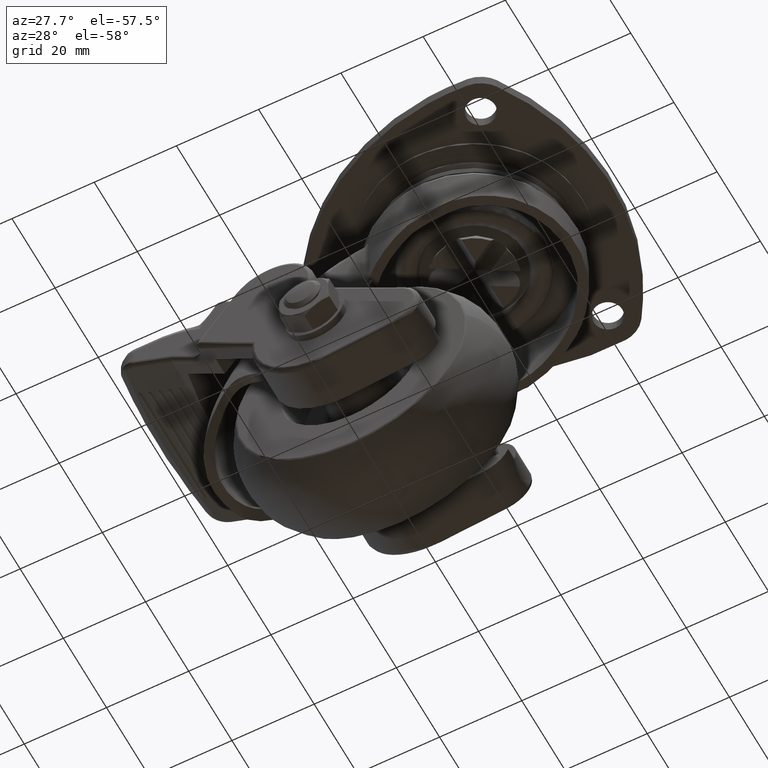
[diagram: clean part render]
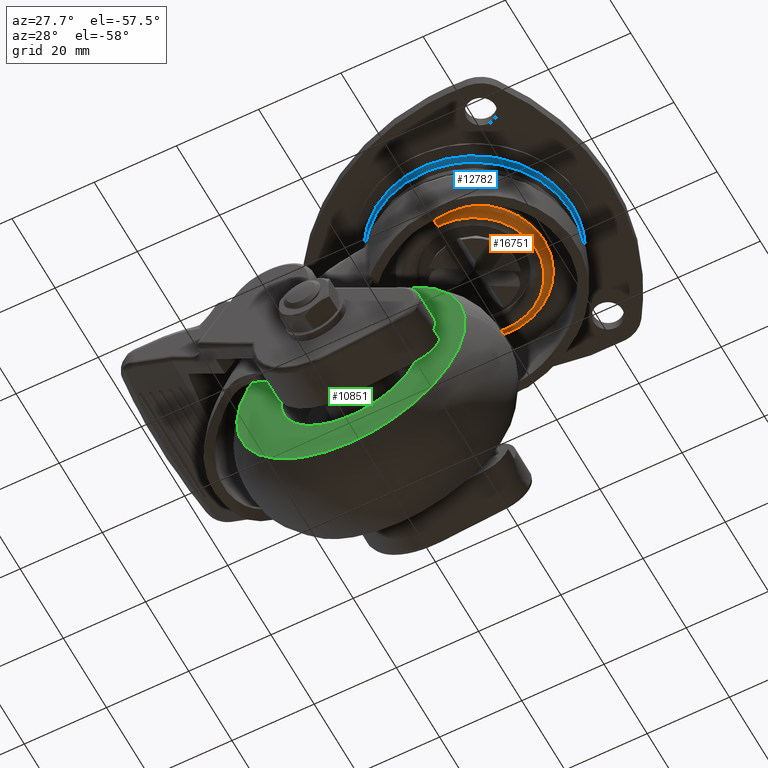
[diagram: same view with three faces highlighted in distinct colors, each labeled with its STEP entity id]
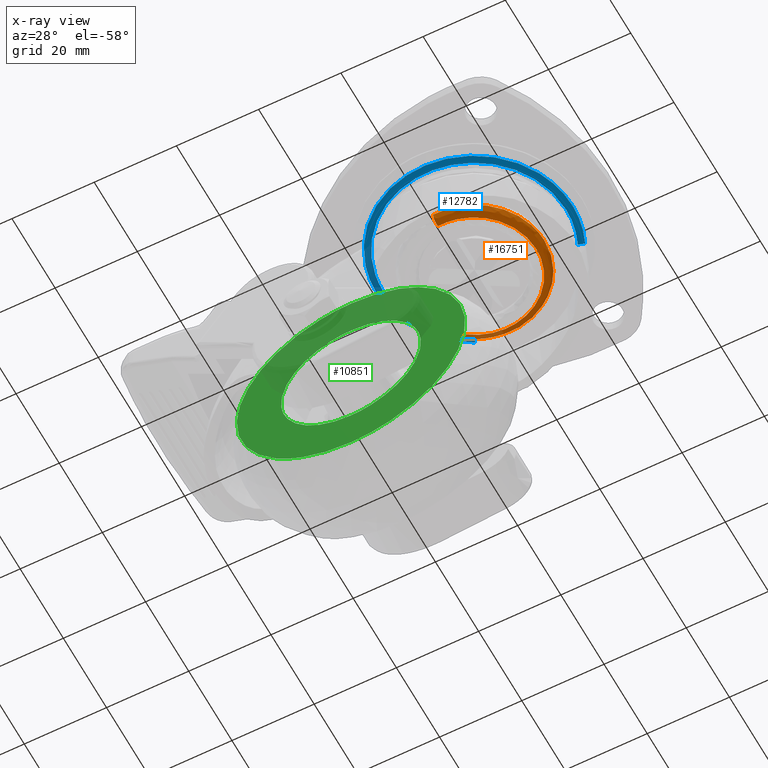
[diagram: x-ray of the same camera — body ghosted, the three highlighted faces saturated]
A machine part, auxiliary view with three faces highlighted in distinct colors.
The next image is the same camera in x-ray (body ghosted, the three faces saturated) — at least one of them is partly hidden behind the body in this view.
Their STEP definitions:

[orange] entity #16751 — the highlighted face is a freeform B-spline surface patch.
#14975=CARTESIAN_POINT('',(17.0,0.0,-13.260379159228281));
#14976=VERTEX_POINT('',#14975);
#14977=CARTESIAN_POINT('',(11.110132898970740,12.867204318234700,-13.260379159227741));
#14978=VERTEX_POINT('',#14977);
#14979=CARTESIAN_POINT('',(17.0,0.0,-13.260379159228281));
#14980=CARTESIAN_POINT('',(17.000000000000007,7.781623594458412,-13.260379159228275));
#14981=CARTESIAN_POINT('',(11.110132898970740,12.867204318234702,-13.260379159227744));
#14989=(BOUNDED_CURVE()B_SPLINE_CURVE(2,(#14979,#14980,#14981),.UNSPECIFIED.,.F.,.U.)B_SPLINE_CURVE_WITH_KNOTS((3,3),(0.0,0.136042369939355),.UNSPECIFIED.)CURVE()GEOMETRIC_REPRESENTATION_ITEM()RATIONAL_B_SPLINE_CURVE((1.0,0.840616449493807,0.854696226509305))REPRESENTATION_ITEM(''));
#14990=EDGE_CURVE('',#14976,#14978,#14989,.T.);
#15048=CARTESIAN_POINT('',(0.445008121306036,16.994174524582579,-13.260379159228281));
#15049=VERTEX_POINT('',#15048);
#15055=CARTESIAN_POINT('',(-16.998657751463799,0.213622678099486,-13.260379409527360));
#15056=VERTEX_POINT('',#15055);
#15057=CARTESIAN_POINT('',(0.445008121306036,16.994174524582579,-13.260379159228279));
#15058=CARTESIAN_POINT('',(0.222542190514422,17.000000000000004,-13.260379159228277));
#15059=CARTESIAN_POINT('',(0.0,17.0,-13.260379159228281));
#15060=CARTESIAN_POINT('',(-16.787702808261368,16.999999999999996,-13.260379159228281));
#15061=CARTESIAN_POINT('',(-16.998657751463803,0.213622678099486,-13.260379409527358));
#15069=(BOUNDED_CURVE()B_SPLINE_CURVE(2,(#15057,#15058,#15059,#15060,#15061),.UNSPECIFIED.,.F.,.U.)B_SPLINE_CURVE_WITH_KNOTS((3,2,3),(0.245396693339510,0.250000000000000,0.497784295920021),.UNSPECIFIED.)CURVE()GEOMETRIC_REPRESENTATION_ITEM()RATIONAL_B_SPLINE_CURVE((0.989412390644931,0.994606890780094,1.0,0.709702639986240,0.994854295640083))REPRESENTATION_ITEM(''));
#15070=EDGE_CURVE('',#15049,#15056,#15069,.T.);
#15087=CARTESIAN_POINT('',(-1.185465276783836,-16.958616455287231,-13.260379409527440));
#15088=VERTEX_POINT('',#15087);
#15102=CARTESIAN_POINT('',(-1.185465276783835,-16.958616455287231,-13.260379409527445));
#15103=CARTESIAN_POINT('',(-0.593454969871431,-17.0,-13.260379159228284));
#15104=CARTESIAN_POINT('',(0.0,-17.0,-13.260379159228281));
#15105=CARTESIAN_POINT('',(17.000000000000004,-17.000000000000004,-13.260379159228281));
#15106=CARTESIAN_POINT('',(17.0,0.0,-13.260379159228281));
#15114=(BOUNDED_CURVE()B_SPLINE_CURVE(2,(#15102,#15103,#15104,#15105,#15106),.UNSPECIFIED.,.F.,.U.)B_SPLINE_CURVE_WITH_KNOTS((3,2,3),(0.737833686535108,0.750000000000000,1.0),.UNSPECIFIED.)CURVE()GEOMETRIC_REPRESENTATION_ITEM()RATIONAL_B_SPLINE_CURVE((0.972879876387010,0.985746277152697,1.0,0.707106781186548,1.0))REPRESENTATION_ITEM(''));
#15115=EDGE_CURVE('',#15088,#14976,#15114,.T.);
#15134=CARTESIAN_POINT('',(11.110132898970740,12.867204318234702,-13.260379159227744));
#15135=CARTESIAN_POINT('',(6.514553427737923,16.835237887176142,-13.260379159228279));
#15136=CARTESIAN_POINT('',(0.445008121306036,16.994174524582579,-13.260379159228279));
#15144=(BOUNDED_CURVE()B_SPLINE_CURVE(2,(#15134,#15135,#15136),.UNSPECIFIED.,.F.,.U.)B_SPLINE_CURVE_WITH_KNOTS((3,3),(0.136042369939355,0.245396693339510),.UNSPECIFIED.)CURVE()GEOMETRIC_REPRESENTATION_ITEM()RATIONAL_B_SPLINE_CURVE((0.854696226509305,0.866013910035704,0.989412390644931))REPRESENTATION_ITEM(''));
#15145=EDGE_CURVE('',#14978,#15049,#15144,.T.);
#16648=CARTESIAN_POINT('',(-1.036299825967873,-14.824749040127887,-15.255537858178188));
#16649=CARTESIAN_POINT('',(-0.612022287002005,-14.854407467302764,-15.255537858178188));
#16650=CARTESIAN_POINT('',(-0.186742980302309,-14.859751966011462,-15.255537858178188));
#16651=CARTESIAN_POINT('',(14.673008985709153,-15.046494946313771,-15.255537858178181));
#16652=CARTESIAN_POINT('',(14.859751966011462,-0.186742980302310,-15.255537858178188));
#16653=CARTESIAN_POINT('',(15.046494946313771,14.673008985709153,-15.255537858178181));
#16654=CARTESIAN_POINT('',(0.186742980302311,14.859751966011462,-15.255537858178188));
#16655=CARTESIAN_POINT('',(-14.673008985709147,15.046494946313771,-15.255537858178181));
#16656=CARTESIAN_POINT('',(-14.859751966011462,0.186742980302312,-15.255537858178188));
#16657=CARTESIAN_POINT('',(-1.196278201587132,-17.113313807749829,-15.415454008252050));
#16658=CARTESIAN_POINT('',(-0.706502985409842,-17.147550742885389,-15.415454008252050));
#16659=CARTESIAN_POINT('',(-0.215571354001166,-17.153720296467686,-15.415454008252048));
#16660=CARTESIAN_POINT('',(16.938148942466523,-17.369291650468860,-15.415454008252050));
#16661=CARTESIAN_POINT('',(17.153720296467686,-0.215571354001167,-15.415454008252048));
#16662=CARTESIAN_POINT('',(17.369291650468860,16.938148942466523,-15.415454008252050));
#16663=CARTESIAN_POINT('',(0.215571354001169,17.153720296467686,-15.415454008252048));
#16664=CARTESIAN_POINT('',(-16.938148942466519,17.369291650468860,-15.415454008252050));
#16665=CARTESIAN_POINT('',(-17.153720296467686,0.215571354001170,-15.415454008252048));
#16666=CARTESIAN_POINT('',(-1.185126741718835,-16.953787008810004,-13.121304536948243));
#16667=CARTESIAN_POINT('',(-0.699917109584154,-16.987704794263106,-13.121304536948244));
#16668=CARTESIAN_POINT('',(-0.213561842083530,-16.993816836533160,-13.121304536948244));
#16669=CARTESIAN_POINT('',(16.780254994449628,-17.207378678616688,-13.121304536948244));
#16670=CARTESIAN_POINT('',(16.993816836533160,-0.213561842083531,-13.121304536948244));
#16671=CARTESIAN_POINT('',(17.207378678616688,16.780254994449628,-13.121304536948244));
#16672=CARTESIAN_POINT('',(0.213561842083532,16.993816836533160,-13.121304536948244));
#16673=CARTESIAN_POINT('',(-16.780254994449628,17.207378678616688,-13.121304536948244));
#16674=CARTESIAN_POINT('',(-16.993816836533160,0.213561842083533,-13.121304536948244));
#16682=(BOUNDED_SURFACE()B_SPLINE_SURFACE(2,2,((#16648,#16657,#16666),(#16649,#16658,#16667),(#16650,#16659,#16668),(#16651,#16660,#16669),(#16652,#16661,#16670),(#16653,#16662,#16671),(#16654,#16663,#16672),(#16655,#16664,#16673),(#16656,#16665,#16674)),.UNSPECIFIED.,.F.,.F.,.U.)B_SPLINE_SURFACE_WITH_KNOTS((3,2,2,2,3),(3,3),(0.0,1.126338962541012,29.284839880105430,57.443340797669848,85.601841715234258),(0.0,3.644748868643993),.UNSPECIFIED.)GEOMETRIC_REPRESENTATION_ITEM()RATIONAL_B_SPLINE_SURFACE(((0.895729831234561,0.587800134052316,0.895729819879008),(0.905606589921446,0.594281508098050,0.905606578440681),(0.916342196299514,0.601326479302664,0.916342184682649),(0.647951780890761,0.425202031221946,0.647951772676397),(0.916342196299514,0.601326479302664,0.916342184682649),(0.647951780890761,0.425202031221946,0.647951772676397),(0.916342196299514,0.601326479302664,0.916342184682649),(0.647951780890761,0.425202031221946,0.647951772676397),(0.916342196299514,0.601326479302664,0.916342184682649)))REPRESENTATION_ITEM('')SURFACE());
#16683=CARTESIAN_POINT('',(15.0,0.0,-15.260379159228300));
#16684=VERTEX_POINT('',#16683);
#16685=CARTESIAN_POINT('',(-1.045998775780731,-14.963485124061799,-15.260379159228290));
#16686=VERTEX_POINT('',#16685);
#16687=CARTESIAN_POINT('',(15.0,0.0,-15.260379159228300));
#16688=CARTESIAN_POINT('',(14.999999999999996,-14.999999999999996,-15.260379159228293));
#16689=CARTESIAN_POINT('',(0.0,-15.0,-15.260379159228300));
#16690=CARTESIAN_POINT('',(-0.523636739118285,-15.0,-15.260379159228306));
#16691=CARTESIAN_POINT('',(-1.045998775780731,-14.963485124061803,-15.260379159228288));
#16699=(BOUNDED_CURVE()B_SPLINE_CURVE(2,(#16687,#16688,#16689,#16690,#16691),.UNSPECIFIED.,.F.,.U.)B_SPLINE_CURVE_WITH_KNOTS((3,2,3),(0.0,0.250000000000000,0.262166313487714),.UNSPECIFIED.)CURVE()GEOMETRIC_REPRESENTATION_ITEM()RATIONAL_B_SPLINE_CURVE((1.0,0.707106781186547,1.0,0.985746277125960,0.972879876338741))REPRESENTATION_ITEM(''));
#16700=EDGE_CURVE('',#16684,#16686,#16699,.T.);
#16701=ORIENTED_EDGE('',*,*,#16700,.F.);
#16702=CARTESIAN_POINT('',(-14.998815667251019,0.188490598434599,-15.260379159228290));
#16703=VERTEX_POINT('',#16702);
#16704=CARTESIAN_POINT('',(-14.998815667251021,0.188490598434599,-15.260379159228291));
#16705=CARTESIAN_POINT('',(-14.812678948349783,15.0,-15.260379159228297));
#16706=CARTESIAN_POINT('',(0.0,15.0,-15.260379159228300));
#16707=CARTESIAN_POINT('',(14.999999999999996,14.999999999999996,-15.260379159228293));
#16708=CARTESIAN_POINT('',(15.0,0.0,-15.260379159228300));
#16716=(BOUNDED_CURVE()B_SPLINE_CURVE(2,(#16704,#16705,#16706,#16707,#16708),.UNSPECIFIED.,.F.,.U.)B_SPLINE_CURVE_WITH_KNOTS((3,2,3),(0.502215704081358,0.750000000000000,1.0),.UNSPECIFIED.)CURVE()GEOMETRIC_REPRESENTATION_ITEM()RATIONAL_B_SPLINE_CURVE((0.994854295636910,0.709702639987855,1.0,0.707106781186547,1.0))REPRESENTATION_ITEM(''));
#16717=EDGE_CURVE('',#16703,#16684,#16716,.T.);
#16718=ORIENTED_EDGE('',*,*,#16717,.F.);
#16719=CARTESIAN_POINT('',(-14.998815667251012,0.188490598434599,-15.260379159228286));
#16720=CARTESIAN_POINT('',(-16.998657250906295,0.213622671726446,-15.260379150836759));
#16721=CARTESIAN_POINT('',(-16.998657751463803,0.213622678099486,-13.260379409527360));
#16729=(BOUNDED_CURVE()B_SPLINE_CURVE(2,(#16719,#16720,#16721),.UNSPECIFIED.,.F.,.U.)B_SPLINE_CURVE_WITH_KNOTS((3,3),(-1.734750787298609,-0.265249468425991),.UNSPECIFIED.)CURVE()GEOMETRIC_REPRESENTATION_ITEM()RATIONAL_B_SPLINE_CURVE((0.889029722031360,0.628638993075931,0.889029631404285))REPRESENTATION_ITEM(''));
#16730=EDGE_CURVE('',#16703,#15056,#16729,.T.);
#16731=ORIENTED_EDGE('',*,*,#16730,.T.);
#16732=ORIENTED_EDGE('',*,*,#15070,.F.);
#16733=ORIENTED_EDGE('',*,*,#15145,.F.);
#16734=ORIENTED_EDGE('',*,*,#14990,.F.);
#16735=ORIENTED_EDGE('',*,*,#15115,.F.);
#16736=CARTESIAN_POINT('',(-1.045998775780731,-14.963485124061798,-15.260379159228284));
#16737=CARTESIAN_POINT('',(-1.185465241874159,-16.958615955907717,-15.260379126098041));
#16738=CARTESIAN_POINT('',(-1.185465276783836,-16.958616455287228,-13.260379409527447));
#16746=(BOUNDED_CURVE()B_SPLINE_CURVE(2,(#16736,#16737,#16738),.UNSPECIFIED.,.F.,.U.)B_SPLINE_CURVE_WITH_KNOTS((3,3),(-1.734750774445672,-0.265249468426077),.UNSPECIFIED.)CURVE()GEOMETRIC_REPRESENTATION_ITEM()RATIONAL_B_SPLINE_CURVE((0.869031705912400,0.614498264564011,0.869031621776412))REPRESENTATION_ITEM(''));
#16747=EDGE_CURVE('',#16686,#15088,#16746,.T.);
#16748=ORIENTED_EDGE('',*,*,#16747,.F.);
#16749=EDGE_LOOP('',(#16701,#16718,#16731,#16732,#16733,#16734,#16735,#16748));
#16750=FACE_OUTER_BOUND('',#16749,.T.);
#16751=ADVANCED_FACE('',(#16750),#16682,.T.);

[blue] entity #12782 — the highlighted face is a freeform B-spline surface patch.
#12508=CARTESIAN_POINT('',(21.397010466824788,-10.583736243661930,-4.424549421080224));
#12509=VERTEX_POINT('',#12508);
#12510=CARTESIAN_POINT('',(-23.871479410152251,0.0,-4.424549397748230));
#12511=VERTEX_POINT('',#12510);
#12512=CARTESIAN_POINT('',(21.397010466824788,-10.583736243661932,-4.424549421080224));
#12513=CARTESIAN_POINT('',(14.824411483884822,-23.871479410152247,-4.424549397748231));
#12514=CARTESIAN_POINT('',(0.0,-23.871479410152251,-4.424549397748230));
#12515=CARTESIAN_POINT('',(-23.871479410152251,-23.871479410152251,-4.424549397748230));
#12516=CARTESIAN_POINT('',(-23.871479410152251,0.0,-4.424549397748230));
#12524=(BOUNDED_CURVE()B_SPLINE_CURVE(2,(#12512,#12513,#12514,#12515,#12516),.UNSPECIFIED.,.F.,.U.)B_SPLINE_CURVE_WITH_KNOTS((3,2,3),(0.575362209165932,0.750000000000000,1.0),.UNSPECIFIED.)CURVE()GEOMETRIC_REPRESENTATION_ITEM()RATIONAL_B_SPLINE_CURVE((0.876646594191695,0.795399101264557,1.0,0.707106781186547,1.0))REPRESENTATION_ITEM(''));
#12525=EDGE_CURVE('',#12509,#12511,#12524,.T.);
#12543=CARTESIAN_POINT('',(-21.967295607639759,9.342668434163876,-4.424549421169845));
#12544=VERTEX_POINT('',#12543);
#12558=CARTESIAN_POINT('',(-23.871479410152251,0.0,-4.424549397748230));
#12559=CARTESIAN_POINT('',(-23.871479410152247,4.865385626466663,-4.424549397748229));
#12560=CARTESIAN_POINT('',(-21.967295607639755,9.342668434163876,-4.424549421169845));
#12568=(BOUNDED_CURVE()B_SPLINE_CURVE(2,(#12558,#12559,#12560),.UNSPECIFIED.,.F.,.U.)B_SPLINE_CURVE_WITH_KNOTS((3,3),(0.0,0.066449865337498),.UNSPECIFIED.)CURVE()GEOMETRIC_REPRESENTATION_ITEM()RATIONAL_B_SPLINE_CURVE((1.0,0.922149140206318,0.885683713610226))REPRESENTATION_ITEM(''));
#12569=EDGE_CURVE('',#12511,#12544,#12568,.T.);
#12603=CARTESIAN_POINT('',(23.871479410152251,0.0,-4.424549397748230));
#12604=VERTEX_POINT('',#12603);
#12605=CARTESIAN_POINT('',(23.871479410152251,0.0,-4.424549397748230));
#12606=CARTESIAN_POINT('',(23.871479410152258,-5.581132537186864,-4.424549397748230));
#12607=CARTESIAN_POINT('',(21.397010466824799,-10.583736243661932,-4.424549421080224));
#12615=(BOUNDED_CURVE()B_SPLINE_CURVE(2,(#12605,#12606,#12607),.UNSPECIFIED.,.F.,.U.)B_SPLINE_CURVE_WITH_KNOTS((3,3),(0.500000000000000,0.575362209165932),.UNSPECIFIED.)CURVE()GEOMETRIC_REPRESENTATION_ITEM()RATIONAL_B_SPLINE_CURVE((1.0,0.911707679921990,0.876646594191695))REPRESENTATION_ITEM(''));
#12616=EDGE_CURVE('',#12604,#12509,#12615,.T.);
#12618=CARTESIAN_POINT('',(21.793876702516609,9.740352532800246,-4.424549398178639));
#12619=VERTEX_POINT('',#12618);
#12620=CARTESIAN_POINT('',(21.793876702516609,9.740352532800246,-4.424549398178639));
#12621=CARTESIAN_POINT('',(23.871479410152247,5.091751050180061,-4.424549397748230));
#12622=CARTESIAN_POINT('',(23.871479410152251,0.0,-4.424549397748230));
#12630=(BOUNDED_CURVE()B_SPLINE_CURVE(2,(#12620,#12621,#12622),.UNSPECIFIED.,.F.,.U.)B_SPLINE_CURVE_WITH_KNOTS((3,3),(0.430709483575402,0.500000000000000),.UNSPECIFIED.)CURVE()GEOMETRIC_REPRESENTATION_ITEM()RATIONAL_B_SPLINE_CURVE((0.882641638329771,0.918821110444612,1.0))REPRESENTATION_ITEM(''));
#12631=EDGE_CURVE('',#12619,#12604,#12630,.T.);
#12633=CARTESIAN_POINT('',(-10.970851179863701,21.201130950326512,-4.424549398221217));
#12634=VERTEX_POINT('',#12633);
#12650=CARTESIAN_POINT('',(-21.967295607639766,9.342668434163876,-4.424549421169844));
#12651=CARTESIAN_POINT('',(-18.603727993323044,17.251381487924828,-4.424549397748230));
#12652=CARTESIAN_POINT('',(-10.970851179863706,21.201130950326512,-4.424549398221217));
#12660=(BOUNDED_CURVE()B_SPLINE_CURVE(2,(#12650,#12651,#12652),.UNSPECIFIED.,.F.,.U.)B_SPLINE_CURVE_WITH_KNOTS((3,3),(0.066449865337498,0.171825371000895),.UNSPECIFIED.)CURVE()GEOMETRIC_REPRESENTATION_ITEM()RATIONAL_B_SPLINE_CURVE((0.885683713610226,0.827857219195551,0.874103860134235))REPRESENTATION_ITEM(''));
#12661=EDGE_CURVE('',#12544,#12634,#12660,.T.);
#12671=CARTESIAN_POINT('',(21.860577896096252,9.770163343605127,-4.387421882799212));
#12672=CARTESIAN_POINT('',(31.087065258022214,-10.873948590792248,-4.387421882799211));
#12673=CARTESIAN_POINT('',(11.004427990213200,-21.266018017490474,-4.387421882799211));
#12674=CARTESIAN_POINT('',(-10.261590027277270,-32.270446007703683,-4.387421882799211));
#12675=CARTESIAN_POINT('',(-21.266018017490474,-11.004427990213211,-4.387421882799211));
#12676=CARTESIAN_POINT('',(-32.270446007703683,10.261590027277284,-4.387421882799211));
#12677=CARTESIAN_POINT('',(-11.004427990213211,21.266018017490474,-4.387421882799211));
#12678=CARTESIAN_POINT('',(21.107968519766224,9.433799109520249,-4.818181895831016));
#12679=CARTESIAN_POINT('',(30.016809160174535,-10.499583571438281,-4.818181895831016));
#12680=CARTESIAN_POINT('',(10.625570865486319,-20.533877969169751,-4.818181895831015));
#12681=CARTESIAN_POINT('',(-9.908307103683438,-31.159448834656075,-4.818181895831016));
#12682=CARTESIAN_POINT('',(-20.533877969169751,-10.625570865486329,-4.818181895831015));
#12683=CARTESIAN_POINT('',(-31.159448834656075,9.908307103683448,-4.818181895831016));
#12684=CARTESIAN_POINT('',(-10.625570865486331,20.533877969169751,-4.818181895831015));
#12685=CARTESIAN_POINT('',(20.259021432128900,9.054378594851439,-4.797089821985121));
#12686=CARTESIAN_POINT('',(28.809555004340812,-10.077297983603044,-4.797089821985121));
#12687=CARTESIAN_POINT('',(10.198218160639740,-19.708020384461754,-4.797089821985122));
#12688=CARTESIAN_POINT('',(-9.509802223822009,-29.906238545101480,-4.797089821985122));
#12689=CARTESIAN_POINT('',(-19.708020384461744,-10.198218160639751,-4.797089821985122));
#12690=CARTESIAN_POINT('',(-29.906238545101480,9.509802223822019,-4.797089821985122));
#12691=CARTESIAN_POINT('',(-10.198218160639753,19.708020384461744,-4.797089821985122));
#12699=(BOUNDED_SURFACE()B_SPLINE_SURFACE(2,2,((#12671,#12678,#12685),(#12672,#12679,#12686),(#12673,#12680,#12687),(#12674,#12681,#12688),(#12675,#12682,#12689),(#12676,#12683,#12690),(#12677,#12684,#12691)),.UNSPECIFIED.,.F.,.F.,.U.)B_SPLINE_SURFACE_WITH_KNOTS((3,2,2,3),(3,3),(0.0,38.085707071661332,77.758318604641886,117.430930137622400),(0.0,1.830360126657434),.UNSPECIFIED.)GEOMETRIC_REPRESENTATION_ITEM()RATIONAL_B_SPLINE_SURFACE(((0.924956013273077,0.896066427291214,0.925673226323901),(0.680179291522746,0.658934931960182,0.680706704132405),(0.946240945599193,0.916686557320000,0.946974663036205),(0.669093389269561,0.648195280903523,0.669612205844747),(0.946240945599193,0.916686557320000,0.946974663036205),(0.669093389269561,0.648195280903523,0.669612205844747),(0.946240945599193,0.916686557320000,0.946974663036205)))REPRESENTATION_ITEM('')SURFACE());
#12700=ORIENTED_EDGE('',*,*,#12631,.T.);
#12701=ORIENTED_EDGE('',*,*,#12616,.T.);
#12702=ORIENTED_EDGE('',*,*,#12525,.T.);
#12703=ORIENTED_EDGE('',*,*,#12569,.T.);
#12704=ORIENTED_EDGE('',*,*,#12661,.T.);
#12705=CARTESIAN_POINT('',(-10.235851355055679,19.780746398871980,-4.798018899278171));
#12706=VERTEX_POINT('',#12705);
#12707=CARTESIAN_POINT('',(-10.970851179863708,21.201130950326512,-4.424549398221217));
#12708=CARTESIAN_POINT('',(-10.623392012446118,20.529667343406061,-4.798018398963315));
#12709=CARTESIAN_POINT('',(-10.235851355055676,19.780746398871980,-4.798018899278171));
#12717=(BOUNDED_CURVE()B_SPLINE_CURVE(2,(#12707,#12708,#12709),.UNSPECIFIED.,.F.,.U.)B_SPLINE_CURVE_WITH_KNOTS((3,3),(-1.419603642035961,-0.568924215773596),.UNSPECIFIED.)CURVE()GEOMETRIC_REPRESENTATION_ITEM()RATIONAL_B_SPLINE_CURVE((0.943680018407201,0.919280800855302,0.944347103401346))REPRESENTATION_ITEM(''));
#12718=EDGE_CURVE('',#12634,#12706,#12717,.T.);
#12719=ORIENTED_EDGE('',*,*,#12718,.T.);
#12720=CARTESIAN_POINT('',(-22.272193000000001,0.0,-4.798019399278131));
#12721=VERTEX_POINT('',#12720);
#12722=CARTESIAN_POINT('',(-22.272193000000001,0.0,-4.798019399278131));
#12723=CARTESIAN_POINT('',(-22.272192999999998,13.552356353921962,-4.798019399278131));
#12724=CARTESIAN_POINT('',(-10.235851355055676,19.780746398871980,-4.798018899278171));
#12732=(BOUNDED_CURVE()B_SPLINE_CURVE(2,(#12722,#12723,#12724),.UNSPECIFIED.,.F.,.U.)B_SPLINE_CURVE_WITH_KNOTS((3,3),(0.0,0.171825371002079),.UNSPECIFIED.)CURVE()GEOMETRIC_REPRESENTATION_ITEM()RATIONAL_B_SPLINE_CURVE((1.0,0.798694056053542,0.874103860135275))REPRESENTATION_ITEM(''));
#12733=EDGE_CURVE('',#12721,#12706,#12732,.T.);
#12734=ORIENTED_EDGE('',*,*,#12733,.F.);
#12735=CARTESIAN_POINT('',(22.272193000000001,0.0,-4.798019399278131));
#12736=VERTEX_POINT('',#12735);
#12737=CARTESIAN_POINT('',(22.272193000000001,0.0,-4.798019399278131));
#12738=CARTESIAN_POINT('',(22.272192999999994,-22.272192999999994,-4.798019399278131));
#12739=CARTESIAN_POINT('',(0.0,-22.272193000000001,-4.798019399278131));
#12740=CARTESIAN_POINT('',(-22.272192999999994,-22.272192999999994,-4.798019399278131));
#12741=CARTESIAN_POINT('',(-22.272193000000001,0.0,-4.798019399278131));
#12749=(BOUNDED_CURVE()B_SPLINE_CURVE(2,(#12737,#12738,#12739,#12740,#12741),.UNSPECIFIED.,.F.,.U.)B_SPLINE_CURVE_WITH_KNOTS((3,2,3),(0.500000000000000,0.750000000000000,1.0),.UNSPECIFIED.)CURVE()GEOMETRIC_REPRESENTATION_ITEM()RATIONAL_B_SPLINE_CURVE((1.0,0.707106781186547,1.0,0.707106781186547,1.0))REPRESENTATION_ITEM(''));
#12750=EDGE_CURVE('',#12736,#12721,#12749,.T.);
#12751=ORIENTED_EDGE('',*,*,#12750,.F.);
#12752=CARTESIAN_POINT('',(20.333780736908089,9.087790823437182,-4.798018899278171));
#12753=VERTEX_POINT('',#12752);
#12754=CARTESIAN_POINT('',(20.333780736908093,9.087790823437182,-4.798018899278171));
#12755=CARTESIAN_POINT('',(22.272193000000005,4.750625637870330,-4.798019399278131));
#12756=CARTESIAN_POINT('',(22.272193000000001,0.0,-4.798019399278131));
#12764=(BOUNDED_CURVE()B_SPLINE_CURVE(2,(#12754,#12755,#12756),.UNSPECIFIED.,.F.,.U.)B_SPLINE_CURVE_WITH_KNOTS((3,3),(0.430709483574167,0.500000000000000),.UNSPECIFIED.)CURVE()GEOMETRIC_REPRESENTATION_ITEM()RATIONAL_B_SPLINE_CURVE((0.882641638328481,0.918821110443166,1.0))REPRESENTATION_ITEM(''));
#12765=EDGE_CURVE('',#12753,#12736,#12764,.T.);
#12766=ORIENTED_EDGE('',*,*,#12765,.F.);
#12767=CARTESIAN_POINT('',(21.793876702516616,9.740352532800246,-4.424549398178639));
#12768=CARTESIAN_POINT('',(21.103640173448326,9.431864638678054,-4.798018398460862));
#12769=CARTESIAN_POINT('',(20.333780736908086,9.087790823437182,-4.798018899278171));
#12777=(BOUNDED_CURVE()B_SPLINE_CURVE(2,(#12767,#12768,#12769),.UNSPECIFIED.,.F.,.U.)B_SPLINE_CURVE_WITH_KNOTS((3,3),(-1.419603642135518,-0.568924216888480),.UNSPECIFIED.)CURVE()GEOMETRIC_REPRESENTATION_ITEM()RATIONAL_B_SPLINE_CURVE((0.922452692093073,0.898602315424037,0.923104771474666))REPRESENTATION_ITEM(''));
#12778=EDGE_CURVE('',#12619,#12753,#12777,.T.);
#12779=ORIENTED_EDGE('',*,*,#12778,.F.);
#12780=EDGE_LOOP('',(#12700,#12701,#12702,#12703,#12704,#12719,#12734,#12751,#12766,#12779));
#12781=FACE_OUTER_BOUND('',#12780,.T.);
#12782=ADVANCED_FACE('',(#12781),#12699,.T.);

[green] entity #10851 — the highlighted face is a freeform B-spline surface patch.
#9170=CARTESIAN_POINT('',(0.0,-11.500000000000000,-35.500000000000000));
#9171=VERTEX_POINT('',#9170);
#9172=CARTESIAN_POINT('',(16.947594415824060,-11.499994446995540,-51.166206138740321));
#9173=VERTEX_POINT('',#9172);
#9174=CARTESIAN_POINT('',(0.0,-11.500000000000000,-35.500000000000000));
#9175=CARTESIAN_POINT('',(15.714647742469936,-11.499997223497770,-35.500000043212623));
#9176=CARTESIAN_POINT('',(16.947594415824060,-11.499994446995540,-51.166206138740328));
#9184=(BOUNDED_CURVE()B_SPLINE_CURVE(2,(#9174,#9175,#9176),.UNSPECIFIED.,.F.,.U.)B_SPLINE_CURVE_WITH_KNOTS((3,3),(0.0,0.236331408657555),.UNSPECIFIED.)CURVE()GEOMETRIC_REPRESENTATION_ITEM()RATIONAL_B_SPLINE_CURVE((1.0,0.723120532046286,0.969723581611416))REPRESENTATION_ITEM(''));
#9185=EDGE_CURVE('',#9171,#9173,#9184,.T.);
#9187=CARTESIAN_POINT('',(-16.947594415824060,-11.499994446995540,-53.833793861259679));
#9188=VERTEX_POINT('',#9187);
#9189=CARTESIAN_POINT('',(-16.947594415824060,-11.499994446995540,-53.833793861259679));
#9190=CARTESIAN_POINT('',(-16.999998921796401,-11.499994547835696,-53.167926369650033));
#9191=CARTESIAN_POINT('',(-16.999998943369359,-11.499994656923890,-52.499999916842043));
#9192=CARTESIAN_POINT('',(-16.999999492442079,-11.499997433426113,-35.499999960054652));
#9193=CARTESIAN_POINT('',(0.0,-11.500000000000000,-35.500000000000000));
#9201=(BOUNDED_CURVE()B_SPLINE_CURVE(2,(#9189,#9190,#9191,#9192,#9193),.UNSPECIFIED.,.F.,.U.)B_SPLINE_CURVE_WITH_KNOTS((3,2,3),(0.736331408657555,0.750000000000000,1.0),.UNSPECIFIED.)CURVE()GEOMETRIC_REPRESENTATION_ITEM()RATIONAL_B_SPLINE_CURVE((0.969723581611416,0.983986249140262,1.0,0.707106781186548,1.0))REPRESENTATION_ITEM(''));
#9202=EDGE_CURVE('',#9188,#9171,#9201,.T.);
#9269=CARTESIAN_POINT('',(0.0,-11.500000000000000,-69.500000000000000));
#9270=VERTEX_POINT('',#9269);
#9271=CARTESIAN_POINT('',(16.947594415824060,-11.499994446995540,-51.166206138740328));
#9272=CARTESIAN_POINT('',(16.999998921796401,-11.499994547835696,-51.832073630349974));
#9273=CARTESIAN_POINT('',(16.999998943369359,-11.499994656923890,-52.500000083157978));
#9274=CARTESIAN_POINT('',(16.999999492442079,-11.499997433426117,-69.500000039945377));
#9275=CARTESIAN_POINT('',(0.0,-11.500000000000000,-69.500000000000000));
#9283=(BOUNDED_CURVE()B_SPLINE_CURVE(2,(#9271,#9272,#9273,#9274,#9275),.UNSPECIFIED.,.F.,.U.)B_SPLINE_CURVE_WITH_KNOTS((3,2,3),(0.236331408657555,0.250000000000000,0.500000000000000),.UNSPECIFIED.)CURVE()GEOMETRIC_REPRESENTATION_ITEM()RATIONAL_B_SPLINE_CURVE((0.969723581611416,0.983986249140262,1.0,0.707106781186548,1.0))REPRESENTATION_ITEM(''));
#9284=EDGE_CURVE('',#9173,#9270,#9283,.T.);
#9318=CARTESIAN_POINT('',(0.0,-11.500000000000000,-69.500000000000000));
#9319=CARTESIAN_POINT('',(-15.714647742469921,-11.499997223497768,-69.499999956787406));
#9320=CARTESIAN_POINT('',(-16.947594415824060,-11.499994446995540,-53.833793861259679));
#9328=(BOUNDED_CURVE()B_SPLINE_CURVE(2,(#9318,#9319,#9320),.UNSPECIFIED.,.F.,.U.)B_SPLINE_CURVE_WITH_KNOTS((3,3),(0.500000000000000,0.736331408657555),.UNSPECIFIED.)CURVE()GEOMETRIC_REPRESENTATION_ITEM()RATIONAL_B_SPLINE_CURVE((1.0,0.723120532046286,0.969723581611416))REPRESENTATION_ITEM(''));
#9329=EDGE_CURVE('',#9270,#9188,#9328,.T.);
#10301=CARTESIAN_POINT('',(-18.196914534189169,-11.500000000000000,-73.514800612511351));
#10302=VERTEX_POINT('',#10301);
#10316=CARTESIAN_POINT('',(0.0,-11.500000000000000,-24.701626999999998));
#10317=VERTEX_POINT('',#10316);
#10318=CARTESIAN_POINT('',(-18.196914534189169,-11.499999999999996,-73.514800612511351));
#10319=CARTESIAN_POINT('',(-27.798373000000005,-11.500000000000000,-65.200806904991538));
#10320=CARTESIAN_POINT('',(-27.798373000000002,-11.500000000000000,-52.500000000000000));
#10321=CARTESIAN_POINT('',(-27.798372999999998,-11.500000000000000,-24.701626999999991));
#10322=CARTESIAN_POINT('',(0.0,-11.500000000000000,-24.701626999999998));
#10330=(BOUNDED_CURVE()B_SPLINE_CURVE(2,(#10318,#10319,#10320,#10321,#10322),.UNSPECIFIED.,.F.,.U.)B_SPLINE_CURVE_WITH_KNOTS((3,2,3),(0.614170618178689,0.750000000000000,1.0),.UNSPECIFIED.)CURVE()GEOMETRIC_REPRESENTATION_ITEM()RATIONAL_B_SPLINE_CURVE((0.854652565050775,0.840865980595659,1.0,0.707106781186548,1.0))REPRESENTATION_ITEM(''));
#10331=EDGE_CURVE('',#10302,#10317,#10330,.T.);
#10333=CARTESIAN_POINT('',(20.501664734162549,-11.500000000000000,-33.726846695716048));
#10334=VERTEX_POINT('',#10333);
#10335=CARTESIAN_POINT('',(0.0,-11.500000000000000,-24.701626999999998));
#10336=CARTESIAN_POINT('',(12.237368377984449,-11.499999999999998,-24.701626999999998));
#10337=CARTESIAN_POINT('',(20.501664734162546,-11.500000000000000,-33.726846695716041));
#10345=(BOUNDED_CURVE()B_SPLINE_CURVE(2,(#10335,#10336,#10337),.UNSPECIFIED.,.F.,.U.)B_SPLINE_CURVE_WITH_KNOTS((3,3),(0.0,0.131637486163453),.UNSPECIFIED.)CURVE()GEOMETRIC_REPRESENTATION_ITEM()RATIONAL_B_SPLINE_CURVE((1.0,0.845777091844300,0.853966311196067))REPRESENTATION_ITEM(''));
#10346=EDGE_CURVE('',#10317,#10334,#10345,.T.);
#10448=CARTESIAN_POINT('',(0.0,-11.500000000000000,-80.298373000000012));
#10449=VERTEX_POINT('',#10448);
#10450=CARTESIAN_POINT('',(20.501664734162546,-11.500000000000000,-33.726846695716041));
#10451=CARTESIAN_POINT('',(27.798372999999998,-11.499999999999998,-41.695389023684172));
#10452=CARTESIAN_POINT('',(27.798373000000002,-11.500000000000000,-52.500000000000000));
#10453=CARTESIAN_POINT('',(27.798372999999998,-11.500000000000000,-80.298373000000012));
#10454=CARTESIAN_POINT('',(0.0,-11.500000000000000,-80.298373000000012));
#10462=(BOUNDED_CURVE()B_SPLINE_CURVE(2,(#10450,#10451,#10452,#10453,#10454),.UNSPECIFIED.,.F.,.U.)B_SPLINE_CURVE_WITH_KNOTS((3,2,3),(0.131637486163453,0.250000000000000,0.500000000000000),.UNSPECIFIED.)CURVE()GEOMETRIC_REPRESENTATION_ITEM()RATIONAL_B_SPLINE_CURVE((0.853966311196067,0.861329689342247,1.0,0.707106781186548,1.0))REPRESENTATION_ITEM(''));
#10463=EDGE_CURVE('',#10334,#10449,#10462,.T.);
#10465=CARTESIAN_POINT('',(0.0,-11.500000000000000,-80.298373000000012));
#10466=CARTESIAN_POINT('',(-10.362870919504008,-11.499999999999998,-80.298373000000012));
#10467=CARTESIAN_POINT('',(-18.196914534189169,-11.499999999999996,-73.514800612511365));
#10475=(BOUNDED_CURVE()B_SPLINE_CURVE(2,(#10465,#10466,#10467),.UNSPECIFIED.,.F.,.U.)B_SPLINE_CURVE_WITH_KNOTS((3,3),(0.500000000000000,0.614170618178688),.UNSPECIFIED.)CURVE()GEOMETRIC_REPRESENTATION_ITEM()RATIONAL_B_SPLINE_CURVE((1.0,0.866240800590889,0.854652565050775))REPRESENTATION_ITEM(''));
#10476=EDGE_CURVE('',#10449,#10302,#10475,.T.);
#10834=CARTESIAN_POINT('',(-30.558844161701209,-11.500000000000000,-21.924570365590391));
#10835=CARTESIAN_POINT('',(-30.558844161701209,-11.500000000000000,-83.075427646115060));
#10836=CARTESIAN_POINT('',(30.562128662904119,-11.500000000000000,-21.924570365590391));
#10837=CARTESIAN_POINT('',(30.562128662904119,-11.500000000000000,-83.075427646115060));
#10838=B_SPLINE_SURFACE_WITH_KNOTS('',1,1,((#10834,#10836),(#10835,#10837)),.UNSPECIFIED.,.F.,.F.,.U.,(2,2),(2,2),(0.0,61.150857280524683),(0.0,61.120972824605339),.UNSPECIFIED.);
#10839=ORIENTED_EDGE('',*,*,#10331,.F.);
#10840=ORIENTED_EDGE('',*,*,#10476,.F.);
#10841=ORIENTED_EDGE('',*,*,#10463,.F.);
#10842=ORIENTED_EDGE('',*,*,#10346,.F.);
#10843=EDGE_LOOP('',(#10839,#10840,#10841,#10842));
#10844=FACE_OUTER_BOUND('',#10843,.T.);
#10845=ORIENTED_EDGE('',*,*,#9329,.T.);
#10846=ORIENTED_EDGE('',*,*,#9202,.T.);
#10847=ORIENTED_EDGE('',*,*,#9185,.T.);
#10848=ORIENTED_EDGE('',*,*,#9284,.T.);
#10849=EDGE_LOOP('',(#10845,#10846,#10847,#10848));
#10850=FACE_BOUND('',#10849,.T.);
#10851=ADVANCED_FACE('',(#10844,#10850),#10838,.T.);